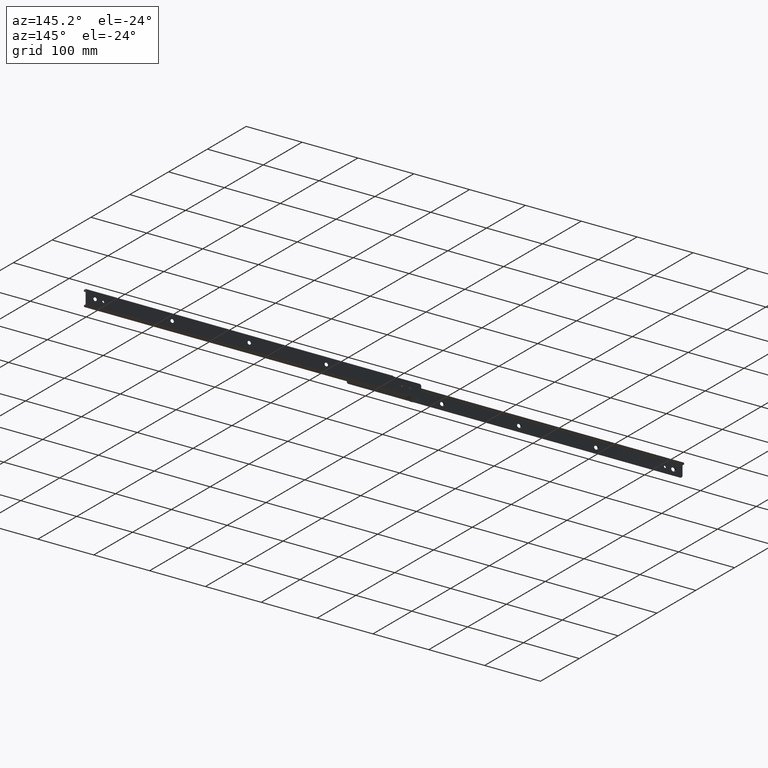
[diagram: clean part render]
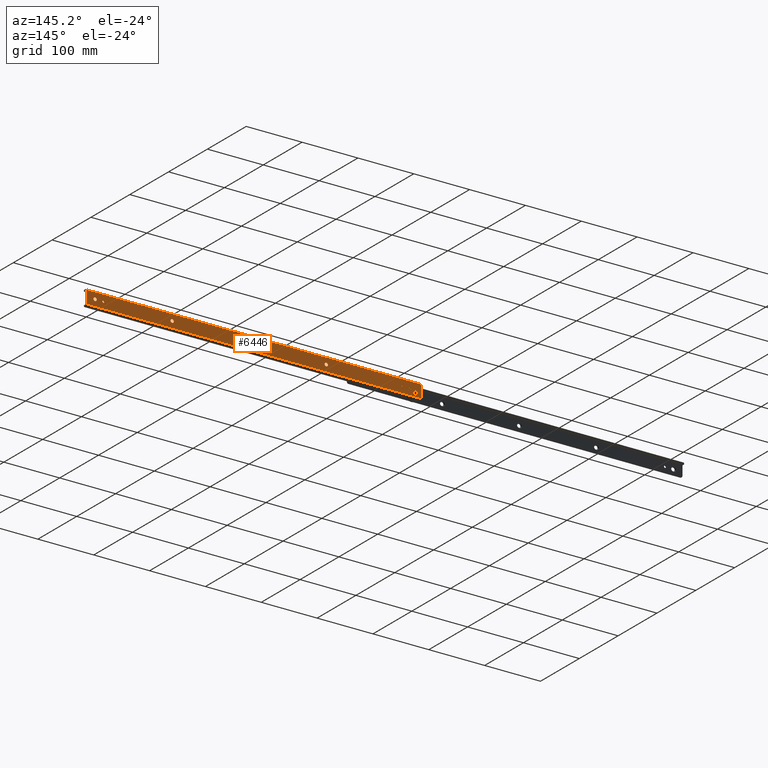
[diagram: same view with one face highlighted and labeled with its STEP entity id]
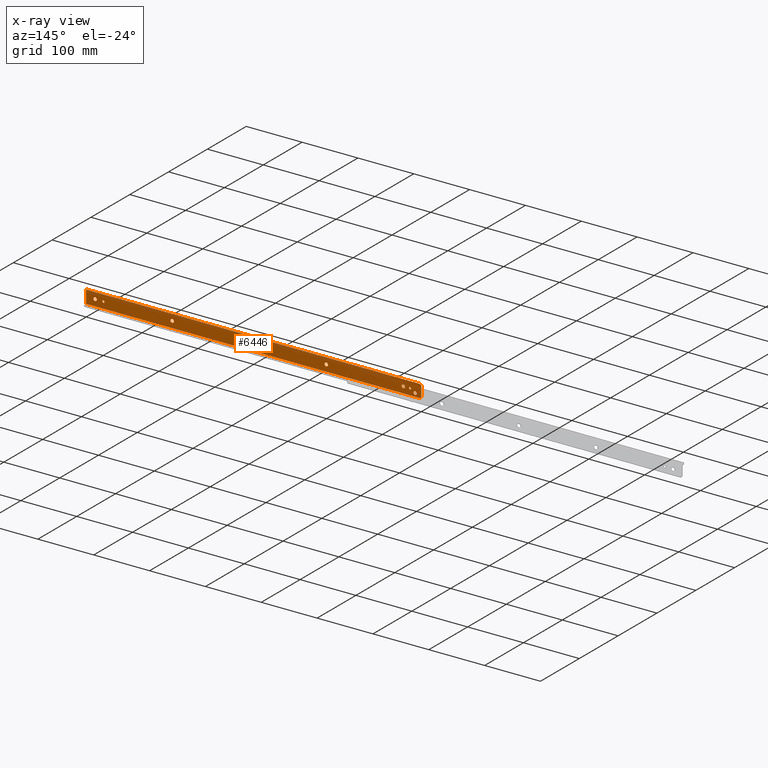
[diagram: x-ray of the same camera — body ghosted, the highlighted face saturated]
A machine part, auxiliary view. The second image highlights one B-rep face of the part: STEP entity #6446.
The next image is the same camera in x-ray: the body ghosted, the highlighted face saturated — about 0% of this face is hidden behind the body in this view.
In plain terms, the highlighted face is a freeform B-spline surface patch.
Its self-contained STEP definition (entity closure, byte-faithful):
#4171=CARTESIAN_POINT('',(29.023201358692852,-7.002160E-009,-7.472384053427721));
#4172=VERTEX_POINT('',#4171);
#4173=CARTESIAN_POINT('',(32.0,0.0,-10.099999999999801));
#4174=VERTEX_POINT('',#4173);
#4175=CARTESIAN_POINT('',(29.023201358692855,-7.002160E-009,-7.472384053427721));
#4176=CARTESIAN_POINT('',(29.351904282893070,0.0,-10.099999999999802));
#4177=CARTESIAN_POINT('',(32.0,0.0,-10.099999999999801));
#4185=(BOUNDED_CURVE()B_SPLINE_CURVE(2,(#4175,#4176,#4177),.UNSPECIFIED.,.F.,.U.)B_SPLINE_CURVE_WITH_KNOTS((3,3),(0.271473934237460,0.500000000000000),.UNSPECIFIED.)CURVE()GEOMETRIC_REPRESENTATION_ITEM()RATIONAL_B_SPLINE_CURVE((0.954005420053977,0.732265060064140,1.0))REPRESENTATION_ITEM(''));
#4186=EDGE_CURVE('',#4172,#4174,#4185,.T.);
#4227=CARTESIAN_POINT('',(34.999885772111092,-3.867206E-009,-7.073820367876783));
#4228=VERTEX_POINT('',#4227);
#4234=CARTESIAN_POINT('',(32.0,0.0,-10.099999999999801));
#4235=CARTESIAN_POINT('',(34.999999999999993,0.0,-10.099999999999801));
#4236=CARTESIAN_POINT('',(35.0,0.0,-7.099999999999799));
#4237=CARTESIAN_POINT('',(35.0,0.0,-7.086909921935767));
#4238=CARTESIAN_POINT('',(34.999885772111085,-3.867206E-009,-7.073820367876783));
#4246=(BOUNDED_CURVE()B_SPLINE_CURVE(2,(#4234,#4235,#4236,#4237,#4238),.UNSPECIFIED.,.F.,.U.)B_SPLINE_CURVE_WITH_KNOTS((3,2,3),(0.500000000000000,0.750000000000000,0.751539897341326),.UNSPECIFIED.)CURVE()GEOMETRIC_REPRESENTATION_ITEM()RATIONAL_B_SPLINE_CURVE((1.0,0.707106781186548,1.0,0.998195898044227,0.996414021142895))REPRESENTATION_ITEM(''));
#4247=EDGE_CURVE('',#4174,#4228,#4246,.T.);
#4274=CARTESIAN_POINT('',(32.0,0.0,-4.099999999999799));
#4275=VERTEX_POINT('',#4274);
#4276=CARTESIAN_POINT('',(32.0,0.0,-4.099999999999799));
#4277=CARTESIAN_POINT('',(29.0,0.0,-4.099999999999799));
#4278=CARTESIAN_POINT('',(29.0,0.0,-7.099999999999799));
#4279=CARTESIAN_POINT('',(29.0,0.0,-7.286914829626650));
#4280=CARTESIAN_POINT('',(29.023201358692855,-7.002160E-009,-7.472384053427721));
#4288=(BOUNDED_CURVE()B_SPLINE_CURVE(2,(#4276,#4277,#4278,#4279,#4280),.UNSPECIFIED.,.F.,.U.)B_SPLINE_CURVE_WITH_KNOTS((3,2,3),(0.0,0.250000000000000,0.271473934237460),.UNSPECIFIED.)CURVE()GEOMETRIC_REPRESENTATION_ITEM()RATIONAL_B_SPLINE_CURVE((1.0,0.707106781186548,1.0,0.974841721122408,0.954005420053977))REPRESENTATION_ITEM(''));
#4289=EDGE_CURVE('',#4275,#4172,#4288,.T.);
#4291=CARTESIAN_POINT('',(34.999885772111085,-3.867206E-009,-7.073820367876783));
#4292=CARTESIAN_POINT('',(34.973933581025001,0.0,-4.099999999999799));
#4293=CARTESIAN_POINT('',(32.0,0.0,-4.099999999999799));
#4301=(BOUNDED_CURVE()B_SPLINE_CURVE(2,(#4291,#4292,#4293),.UNSPECIFIED.,.F.,.U.)B_SPLINE_CURVE_WITH_KNOTS((3,3),(0.751539897341327,1.0),.UNSPECIFIED.)CURVE()GEOMETRIC_REPRESENTATION_ITEM()RATIONAL_B_SPLINE_CURVE((0.996414021142892,0.708910883142322,1.0))REPRESENTATION_ITEM(''));
#4302=EDGE_CURVE('',#4228,#4275,#4301,.T.);
#4357=CARTESIAN_POINT('',(167.023201358692890,-7.002153E-009,-7.472384053427918));
#4358=VERTEX_POINT('',#4357);
#4359=CARTESIAN_POINT('',(170.0,0.0,-10.100000000000000));
#4360=VERTEX_POINT('',#4359);
#4361=CARTESIAN_POINT('',(167.023201358692890,-7.002153E-009,-7.472384053427918));
#4362=CARTESIAN_POINT('',(167.351904282893090,0.0,-10.100000000000003));
#4363=CARTESIAN_POINT('',(170.0,0.0,-10.100000000000000));
#4371=(BOUNDED_CURVE()B_SPLINE_CURVE(2,(#4361,#4362,#4363),.UNSPECIFIED.,.F.,.U.)B_SPLINE_CURVE_WITH_KNOTS((3,3),(0.271473934237460,0.500000000000000),.UNSPECIFIED.)CURVE()GEOMETRIC_REPRESENTATION_ITEM()RATIONAL_B_SPLINE_CURVE((0.954005420053977,0.732265060064139,1.0))REPRESENTATION_ITEM(''));
#4372=EDGE_CURVE('',#4358,#4360,#4371,.T.);
#4413=CARTESIAN_POINT('',(172.999885772111100,-3.867216E-009,-7.073820367876986));
#4414=VERTEX_POINT('',#4413);
#4420=CARTESIAN_POINT('',(170.0,0.0,-10.100000000000000));
#4421=CARTESIAN_POINT('',(172.999999999999970,0.0,-10.100000000000001));
#4422=CARTESIAN_POINT('',(173.0,0.0,-7.100000000000001));
#4423=CARTESIAN_POINT('',(173.0,0.0,-7.086909921935968));
#4424=CARTESIAN_POINT('',(172.999885772111130,-3.867216E-009,-7.073820367876986));
#4432=(BOUNDED_CURVE()B_SPLINE_CURVE(2,(#4420,#4421,#4422,#4423,#4424),.UNSPECIFIED.,.F.,.U.)B_SPLINE_CURVE_WITH_KNOTS((3,2,3),(0.500000000000000,0.750000000000000,0.751539897341326),.UNSPECIFIED.)CURVE()GEOMETRIC_REPRESENTATION_ITEM()RATIONAL_B_SPLINE_CURVE((1.0,0.707106781186548,1.0,0.998195898044227,0.996414021142895))REPRESENTATION_ITEM(''));
#4433=EDGE_CURVE('',#4360,#4414,#4432,.T.);
#4460=CARTESIAN_POINT('',(170.0,0.0,-4.100000000000001));
#4461=VERTEX_POINT('',#4460);
#4462=CARTESIAN_POINT('',(170.0,0.0,-4.100000000000001));
#4463=CARTESIAN_POINT('',(166.999999999999940,0.0,-4.100000000000000));
#4464=CARTESIAN_POINT('',(167.0,0.0,-7.100000000000001));
#4465=CARTESIAN_POINT('',(167.000000000000030,0.0,-7.286914829626850));
#4466=CARTESIAN_POINT('',(167.023201358692890,-7.002153E-009,-7.472384053427918));
#4474=(BOUNDED_CURVE()B_SPLINE_CURVE(2,(#4462,#4463,#4464,#4465,#4466),.UNSPECIFIED.,.F.,.U.)B_SPLINE_CURVE_WITH_KNOTS((3,2,3),(0.0,0.250000000000000,0.271473934237460),.UNSPECIFIED.)CURVE()GEOMETRIC_REPRESENTATION_ITEM()RATIONAL_B_SPLINE_CURVE((1.0,0.707106781186548,1.0,0.974841721122408,0.954005420053977))REPRESENTATION_ITEM(''));
#4475=EDGE_CURVE('',#4461,#4358,#4474,.T.);
#4477=CARTESIAN_POINT('',(172.999885772111100,-3.867216E-009,-7.073820367876986));
#4478=CARTESIAN_POINT('',(172.973933581024990,0.0,-4.100000000000001));
#4479=CARTESIAN_POINT('',(170.0,0.0,-4.100000000000001));
#4487=(BOUNDED_CURVE()B_SPLINE_CURVE(2,(#4477,#4478,#4479),.UNSPECIFIED.,.F.,.U.)B_SPLINE_CURVE_WITH_KNOTS((3,3),(0.751539897341327,1.0),.UNSPECIFIED.)CURVE()GEOMETRIC_REPRESENTATION_ITEM()RATIONAL_B_SPLINE_CURVE((0.996414021142892,0.708910883142322,1.0))REPRESENTATION_ITEM(''));
#4488=EDGE_CURVE('',#4414,#4461,#4487,.T.);
#4543=CARTESIAN_POINT('',(305.023201358692920,-7.002161E-009,-7.472384053427922));
#4544=VERTEX_POINT('',#4543);
#4545=CARTESIAN_POINT('',(308.0,0.0,-10.100000000000000));
#4546=VERTEX_POINT('',#4545);
#4547=CARTESIAN_POINT('',(305.023201358692860,-7.002161E-009,-7.472384053427922));
#4548=CARTESIAN_POINT('',(305.351904282893030,0.0,-10.100000000000003));
#4549=CARTESIAN_POINT('',(308.0,0.0,-10.100000000000000));
#4557=(BOUNDED_CURVE()B_SPLINE_CURVE(2,(#4547,#4548,#4549),.UNSPECIFIED.,.F.,.U.)B_SPLINE_CURVE_WITH_KNOTS((3,3),(0.271473934237460,0.500000000000000),.UNSPECIFIED.)CURVE()GEOMETRIC_REPRESENTATION_ITEM()RATIONAL_B_SPLINE_CURVE((0.954005420053977,0.732265060064140,1.0))REPRESENTATION_ITEM(''));
#4558=EDGE_CURVE('',#4544,#4546,#4557,.T.);
#4599=CARTESIAN_POINT('',(310.999885772110990,-3.867212E-009,-7.073820367876987));
#4600=VERTEX_POINT('',#4599);
#4606=CARTESIAN_POINT('',(308.0,0.0,-10.100000000000000));
#4607=CARTESIAN_POINT('',(311.0,0.0,-10.100000000000001));
#4608=CARTESIAN_POINT('',(311.0,0.0,-7.100000000000001));
#4609=CARTESIAN_POINT('',(311.000000000000060,0.0,-7.086909921935968));
#4610=CARTESIAN_POINT('',(310.999885772111100,-3.867212E-009,-7.073820367876987));
#4618=(BOUNDED_CURVE()B_SPLINE_CURVE(2,(#4606,#4607,#4608,#4609,#4610),.UNSPECIFIED.,.F.,.U.)B_SPLINE_CURVE_WITH_KNOTS((3,2,3),(0.500000000000000,0.750000000000000,0.751539897341326),.UNSPECIFIED.)CURVE()GEOMETRIC_REPRESENTATION_ITEM()RATIONAL_B_SPLINE_CURVE((1.0,0.707106781186548,1.0,0.998195898044227,0.996414021142895))REPRESENTATION_ITEM(''));
#4619=EDGE_CURVE('',#4546,#4600,#4618,.T.);
#4646=CARTESIAN_POINT('',(308.0,0.0,-4.100000000000001));
#4647=VERTEX_POINT('',#4646);
#4648=CARTESIAN_POINT('',(308.0,0.0,-4.100000000000001));
#4649=CARTESIAN_POINT('',(305.0,0.0,-4.100000000000000));
#4650=CARTESIAN_POINT('',(305.0,0.0,-7.100000000000001));
#4651=CARTESIAN_POINT('',(305.0,0.0,-7.286914829626853));
#4652=CARTESIAN_POINT('',(305.023201358692860,-7.002161E-009,-7.472384053427922));
#4660=(BOUNDED_CURVE()B_SPLINE_CURVE(2,(#4648,#4649,#4650,#4651,#4652),.UNSPECIFIED.,.F.,.U.)B_SPLINE_CURVE_WITH_KNOTS((3,2,3),(0.0,0.250000000000000,0.271473934237460),.UNSPECIFIED.)CURVE()GEOMETRIC_REPRESENTATION_ITEM()RATIONAL_B_SPLINE_CURVE((1.0,0.707106781186548,1.0,0.974841721122408,0.954005420053977))REPRESENTATION_ITEM(''));
#4661=EDGE_CURVE('',#4647,#4544,#4660,.T.);
#4663=CARTESIAN_POINT('',(310.999885772110990,-3.867212E-009,-7.073820367876987));
#4664=CARTESIAN_POINT('',(310.973933581025160,0.0,-4.100000000000000));
#4665=CARTESIAN_POINT('',(308.0,0.0,-4.100000000000001));
#4673=(BOUNDED_CURVE()B_SPLINE_CURVE(2,(#4663,#4664,#4665),.UNSPECIFIED.,.F.,.U.)B_SPLINE_CURVE_WITH_KNOTS((3,3),(0.751539897341327,1.0),.UNSPECIFIED.)CURVE()GEOMETRIC_REPRESENTATION_ITEM()RATIONAL_B_SPLINE_CURVE((0.996414021142893,0.708910883142322,1.0))REPRESENTATION_ITEM(''));
#4674=EDGE_CURVE('',#4600,#4647,#4673,.T.);
#4729=CARTESIAN_POINT('',(443.023201358692920,-7.002160E-009,-7.472384053427922));
#4730=VERTEX_POINT('',#4729);
#4731=CARTESIAN_POINT('',(446.0,0.0,-10.100000000000000));
#4732=VERTEX_POINT('',#4731);
#4733=CARTESIAN_POINT('',(443.023201358692860,-7.002160E-009,-7.472384053427922));
#4734=CARTESIAN_POINT('',(443.351904282893140,0.0,-10.100000000000001));
#4735=CARTESIAN_POINT('',(446.0,0.0,-10.100000000000000));
#4743=(BOUNDED_CURVE()B_SPLINE_CURVE(2,(#4733,#4734,#4735),.UNSPECIFIED.,.F.,.U.)B_SPLINE_CURVE_WITH_KNOTS((3,3),(0.271473934237460,0.500000000000000),.UNSPECIFIED.)CURVE()GEOMETRIC_REPRESENTATION_ITEM()RATIONAL_B_SPLINE_CURVE((0.954005420053977,0.732265060064140,1.0))REPRESENTATION_ITEM(''));
#4744=EDGE_CURVE('',#4730,#4732,#4743,.T.);
#4785=CARTESIAN_POINT('',(448.999885772111100,-3.867203E-009,-7.073820367876987));
#4786=VERTEX_POINT('',#4785);
#4792=CARTESIAN_POINT('',(446.0,0.0,-10.100000000000000));
#4793=CARTESIAN_POINT('',(448.999999999999890,0.0,-10.100000000000001));
#4794=CARTESIAN_POINT('',(449.0,0.0,-7.100000000000001));
#4795=CARTESIAN_POINT('',(449.000000000000060,0.0,-7.086909921935968));
#4796=CARTESIAN_POINT('',(448.999885772111100,-3.867203E-009,-7.073820367876987));
#4804=(BOUNDED_CURVE()B_SPLINE_CURVE(2,(#4792,#4793,#4794,#4795,#4796),.UNSPECIFIED.,.F.,.U.)B_SPLINE_CURVE_WITH_KNOTS((3,2,3),(0.500000000000000,0.750000000000000,0.751539897341326),.UNSPECIFIED.)CURVE()GEOMETRIC_REPRESENTATION_ITEM()RATIONAL_B_SPLINE_CURVE((1.0,0.707106781186548,1.0,0.998195898044227,0.996414021142895))REPRESENTATION_ITEM(''));
#4805=EDGE_CURVE('',#4732,#4786,#4804,.T.);
#4832=CARTESIAN_POINT('',(446.0,0.0,-4.100000000000001));
#4833=VERTEX_POINT('',#4832);
#4834=CARTESIAN_POINT('',(446.0,0.0,-4.100000000000001));
#4835=CARTESIAN_POINT('',(443.0,0.0,-4.100000000000000));
#4836=CARTESIAN_POINT('',(443.0,0.0,-7.100000000000001));
#4837=CARTESIAN_POINT('',(443.0,0.0,-7.286914829626853));
#4838=CARTESIAN_POINT('',(443.023201358692800,-7.002160E-009,-7.472384053427922));
#4846=(BOUNDED_CURVE()B_SPLINE_CURVE(2,(#4834,#4835,#4836,#4837,#4838),.UNSPECIFIED.,.F.,.U.)B_SPLINE_CURVE_WITH_KNOTS((3,2,3),(0.0,0.250000000000000,0.271473934237460),.UNSPECIFIED.)CURVE()GEOMETRIC_REPRESENTATION_ITEM()RATIONAL_B_SPLINE_CURVE((1.0,0.707106781186548,1.0,0.974841721122408,0.954005420053977))REPRESENTATION_ITEM(''));
#4847=EDGE_CURVE('',#4833,#4730,#4846,.T.);
#4849=CARTESIAN_POINT('',(448.999885772111100,-3.867203E-009,-7.073820367876987));
#4850=CARTESIAN_POINT('',(448.973933581024880,0.0,-4.100000000000000));
#4851=CARTESIAN_POINT('',(446.0,0.0,-4.100000000000001));
#4859=(BOUNDED_CURVE()B_SPLINE_CURVE(2,(#4849,#4850,#4851),.UNSPECIFIED.,.F.,.U.)B_SPLINE_CURVE_WITH_KNOTS((3,3),(0.751539897341327,1.0),.UNSPECIFIED.)CURVE()GEOMETRIC_REPRESENTATION_ITEM()RATIONAL_B_SPLINE_CURVE((0.996414021142893,0.708910883142322,1.0))REPRESENTATION_ITEM(''));
#4860=EDGE_CURVE('',#4786,#4833,#4859,.T.);
#4915=CARTESIAN_POINT('',(581.023201358692860,-7.002179E-009,-7.472384053427927));
#4916=VERTEX_POINT('',#4915);
#4917=CARTESIAN_POINT('',(584.0,0.0,-10.100000000000000));
#4918=VERTEX_POINT('',#4917);
#4919=CARTESIAN_POINT('',(581.023201358692860,-7.002179E-009,-7.472384053427927));
#4920=CARTESIAN_POINT('',(581.351904282893090,0.0,-10.100000000000003));
#4921=CARTESIAN_POINT('',(584.0,0.0,-10.100000000000000));
#4929=(BOUNDED_CURVE()B_SPLINE_CURVE(2,(#4919,#4920,#4921),.UNSPECIFIED.,.F.,.U.)B_SPLINE_CURVE_WITH_KNOTS((3,3),(0.271473934237460,0.500000000000000),.UNSPECIFIED.)CURVE()GEOMETRIC_REPRESENTATION_ITEM()RATIONAL_B_SPLINE_CURVE((0.954005420053976,0.732265060064140,1.0))REPRESENTATION_ITEM(''));
#4930=EDGE_CURVE('',#4916,#4918,#4929,.T.);
#4971=CARTESIAN_POINT('',(586.999885772111040,-3.867226E-009,-7.073820367876985));
#4972=VERTEX_POINT('',#4971);
#4978=CARTESIAN_POINT('',(584.0,0.0,-10.100000000000000));
#4979=CARTESIAN_POINT('',(587.000000000000110,0.0,-10.100000000000001));
#4980=CARTESIAN_POINT('',(587.0,0.0,-7.100000000000001));
#4981=CARTESIAN_POINT('',(587.0,0.0,-7.086909921935968));
#4982=CARTESIAN_POINT('',(586.999885772111040,-3.867226E-009,-7.073820367876986));
#4990=(BOUNDED_CURVE()B_SPLINE_CURVE(2,(#4978,#4979,#4980,#4981,#4982),.UNSPECIFIED.,.F.,.U.)B_SPLINE_CURVE_WITH_KNOTS((3,2,3),(0.500000000000000,0.750000000000000,0.751539897341326),.UNSPECIFIED.)CURVE()GEOMETRIC_REPRESENTATION_ITEM()RATIONAL_B_SPLINE_CURVE((1.0,0.707106781186548,1.0,0.998195898044227,0.996414021142895))REPRESENTATION_ITEM(''));
#4991=EDGE_CURVE('',#4918,#4972,#4990,.T.);
#5018=CARTESIAN_POINT('',(584.0,0.0,-4.100000000000001));
#5019=VERTEX_POINT('',#5018);
#5020=CARTESIAN_POINT('',(584.0,0.0,-4.100000000000001));
#5021=CARTESIAN_POINT('',(580.999999999999890,0.0,-4.100000000000000));
#5022=CARTESIAN_POINT('',(581.0,0.0,-7.100000000000001));
#5023=CARTESIAN_POINT('',(580.999999999999890,0.0,-7.286914829626856));
#5024=CARTESIAN_POINT('',(581.023201358692860,-7.002179E-009,-7.472384053427927));
#5032=(BOUNDED_CURVE()B_SPLINE_CURVE(2,(#5020,#5021,#5022,#5023,#5024),.UNSPECIFIED.,.F.,.U.)B_SPLINE_CURVE_WITH_KNOTS((3,2,3),(0.0,0.250000000000000,0.271473934237460),.UNSPECIFIED.)CURVE()GEOMETRIC_REPRESENTATION_ITEM()RATIONAL_B_SPLINE_CURVE((1.0,0.707106781186548,1.0,0.974841721122408,0.954005420053976))REPRESENTATION_ITEM(''));
#5033=EDGE_CURVE('',#5019,#4916,#5032,.T.);
#5035=CARTESIAN_POINT('',(586.999885772111040,-3.867226E-009,-7.073820367876986));
#5036=CARTESIAN_POINT('',(586.973933581024990,0.0,-4.100000000000001));
#5037=CARTESIAN_POINT('',(584.0,0.0,-4.100000000000001));
#5045=(BOUNDED_CURVE()B_SPLINE_CURVE(2,(#5035,#5036,#5037),.UNSPECIFIED.,.F.,.U.)B_SPLINE_CURVE_WITH_KNOTS((3,3),(0.751539897341327,1.0),.UNSPECIFIED.)CURVE()GEOMETRIC_REPRESENTATION_ITEM()RATIONAL_B_SPLINE_CURVE((0.996414021142892,0.708910883142322,1.0))REPRESENTATION_ITEM(''));
#5046=EDGE_CURVE('',#4972,#5019,#5045,.T.);
#5101=CARTESIAN_POINT('',(10.999999999999760,0.0,-9.649999999999800));
#5102=VERTEX_POINT('',#5101);
#5103=CARTESIAN_POINT('',(8.059093866000250,-9.714451E-017,-12.368545661081640));
#5104=VERTEX_POINT('',#5103);
#5105=CARTESIAN_POINT('',(10.999999999999760,0.0,-9.649999999999800));
#5106=CARTESIAN_POINT('',(8.273048061738662,0.0,-9.649999999999798));
#5107=CARTESIAN_POINT('',(8.059093866000250,-9.714451E-017,-12.368545661081635));
#5115=(BOUNDED_CURVE()B_SPLINE_CURVE(2,(#5105,#5106,#5107),.UNSPECIFIED.,.F.,.U.)B_SPLINE_CURVE_WITH_KNOTS((3,3),(0.0,0.236331299872550),.UNSPECIFIED.)CURVE()GEOMETRIC_REPRESENTATION_ITEM()RATIONAL_B_SPLINE_CURVE((1.0,0.723120659495846,0.969723354585302))REPRESENTATION_ITEM(''));
#5116=EDGE_CURVE('',#5102,#5104,#5115,.T.);
#5118=CARTESIAN_POINT('',(13.940906133999270,-9.714451E-017,-12.831454338917959));
#5119=VERTEX_POINT('',#5118);
#5120=CARTESIAN_POINT('',(13.940906133999272,-9.714451E-017,-12.831454338917965));
#5121=CARTESIAN_POINT('',(13.949999999999758,0.0,-12.715905822223709));
#5122=CARTESIAN_POINT('',(13.949999999999759,0.0,-12.599999999999801));
#5123=CARTESIAN_POINT('',(13.949999999999761,0.0,-9.649999999999800));
#5124=CARTESIAN_POINT('',(10.999999999999760,0.0,-9.649999999999800));
#5132=(BOUNDED_CURVE()B_SPLINE_CURVE(2,(#5120,#5121,#5122,#5123,#5124),.UNSPECIFIED.,.F.,.U.)B_SPLINE_CURVE_WITH_KNOTS((3,2,3),(0.736331299872550,0.750000000000000,1.0),.UNSPECIFIED.)CURVE()GEOMETRIC_REPRESENTATION_ITEM()RATIONAL_B_SPLINE_CURVE((0.969723354585301,0.983986121690702,1.0,0.707106781186548,1.0))REPRESENTATION_ITEM(''));
#5133=EDGE_CURVE('',#5119,#5102,#5132,.T.);
#5200=CARTESIAN_POINT('',(10.999999999999760,0.0,-15.549999999999800));
#5201=VERTEX_POINT('',#5200);
#5202=CARTESIAN_POINT('',(8.059093866000250,-9.714451E-017,-12.368545661081631));
#5203=CARTESIAN_POINT('',(8.049999999999761,0.0,-12.484094177775891));
#5204=CARTESIAN_POINT('',(8.049999999999761,0.0,-12.599999999999801));
#5205=CARTESIAN_POINT('',(8.049999999999761,0.0,-15.549999999999795));
#5206=CARTESIAN_POINT('',(10.999999999999760,0.0,-15.549999999999800));
#5214=(BOUNDED_CURVE()B_SPLINE_CURVE(2,(#5202,#5203,#5204,#5205,#5206),.UNSPECIFIED.,.F.,.U.)B_SPLINE_CURVE_WITH_KNOTS((3,2,3),(0.236331299872551,0.250000000000000,0.500000000000000),.UNSPECIFIED.)CURVE()GEOMETRIC_REPRESENTATION_ITEM()RATIONAL_B_SPLINE_CURVE((0.969723354585302,0.983986121690702,1.0,0.707106781186548,1.0))REPRESENTATION_ITEM(''));
#5215=EDGE_CURVE('',#5104,#5201,#5214,.T.);
#5249=CARTESIAN_POINT('',(10.999999999999760,0.0,-15.549999999999800));
#5250=CARTESIAN_POINT('',(13.726951938260848,0.0,-15.549999999999800));
#5251=CARTESIAN_POINT('',(13.940906133999267,-9.714451E-017,-12.831454338917959));
#5259=(BOUNDED_CURVE()B_SPLINE_CURVE(2,(#5249,#5250,#5251),.UNSPECIFIED.,.F.,.U.)B_SPLINE_CURVE_WITH_KNOTS((3,3),(0.500000000000000,0.736331299872550),.UNSPECIFIED.)CURVE()GEOMETRIC_REPRESENTATION_ITEM()RATIONAL_B_SPLINE_CURVE((1.0,0.723120659495847,0.969723354585300))REPRESENTATION_ITEM(''));
#5260=EDGE_CURVE('',#5201,#5119,#5259,.T.);
#5283=CARTESIAN_POINT('',(20.0,0.0,-5.099999999999799));
#5284=VERTEX_POINT('',#5283);
#5285=CARTESIAN_POINT('',(18.006165403967181,-9.714451E-017,-6.943080900901508));
#5286=VERTEX_POINT('',#5285);
#5287=CARTESIAN_POINT('',(20.0,0.0,-5.099999999999799));
#5288=CARTESIAN_POINT('',(18.151220705108980,0.0,-5.099999999999798));
#5289=CARTESIAN_POINT('',(18.006165403967184,-9.714451E-017,-6.943080900901508));
#5297=(BOUNDED_CURVE()B_SPLINE_CURVE(2,(#5287,#5288,#5289),.UNSPECIFIED.,.F.,.U.)B_SPLINE_CURVE_WITH_KNOTS((3,3),(0.0,0.236331144559496),.UNSPECIFIED.)CURVE()GEOMETRIC_REPRESENTATION_ITEM()RATIONAL_B_SPLINE_CURVE((1.0,0.723120841456408,0.969723030459033))REPRESENTATION_ITEM(''));
#5298=EDGE_CURVE('',#5284,#5286,#5297,.T.);
#5300=CARTESIAN_POINT('',(21.993834596032819,-9.714451E-017,-7.256919099098090));
#5301=VERTEX_POINT('',#5300);
#5302=CARTESIAN_POINT('',(21.993834596032812,-9.714451E-017,-7.256919099098090));
#5303=CARTESIAN_POINT('',(22.000000000000004,0.0,-7.178581125869870));
#5304=CARTESIAN_POINT('',(22.0,0.0,-7.099999999999799));
#5305=CARTESIAN_POINT('',(22.000000000000007,0.0,-5.099999999999798));
#5306=CARTESIAN_POINT('',(20.0,0.0,-5.099999999999799));
#5314=(BOUNDED_CURVE()B_SPLINE_CURVE(2,(#5302,#5303,#5304,#5305,#5306),.UNSPECIFIED.,.F.,.U.)B_SPLINE_CURVE_WITH_KNOTS((3,2,3),(0.736331144559496,0.750000000000000,1.0),.UNSPECIFIED.)CURVE()GEOMETRIC_REPRESENTATION_ITEM()RATIONAL_B_SPLINE_CURVE((0.969723030459033,0.983985939730139,1.0,0.707106781186548,1.0))REPRESENTATION_ITEM(''));
#5315=EDGE_CURVE('',#5301,#5284,#5314,.T.);
#5382=CARTESIAN_POINT('',(20.0,0.0,-9.099999999999799));
#5383=VERTEX_POINT('',#5382);
#5384=CARTESIAN_POINT('',(18.006165403967184,-9.714451E-017,-6.943080900901508));
#5385=CARTESIAN_POINT('',(18.000000000000007,0.0,-7.021418874129727));
#5386=CARTESIAN_POINT('',(18.0,0.0,-7.099999999999799));
#5387=CARTESIAN_POINT('',(18.000000000000007,0.0,-9.099999999999799));
#5388=CARTESIAN_POINT('',(20.0,0.0,-9.099999999999799));
#5396=(BOUNDED_CURVE()B_SPLINE_CURVE(2,(#5384,#5385,#5386,#5387,#5388),.UNSPECIFIED.,.F.,.U.)B_SPLINE_CURVE_WITH_KNOTS((3,2,3),(0.236331144559496,0.250000000000000,0.500000000000000),.UNSPECIFIED.)CURVE()GEOMETRIC_REPRESENTATION_ITEM()RATIONAL_B_SPLINE_CURVE((0.969723030459033,0.983985939730140,1.0,0.707106781186548,1.0))REPRESENTATION_ITEM(''));
#5397=EDGE_CURVE('',#5286,#5383,#5396,.T.);
#5431=CARTESIAN_POINT('',(20.0,0.0,-9.099999999999799));
#5432=CARTESIAN_POINT('',(21.848779294891028,0.0,-9.099999999999799));
#5433=CARTESIAN_POINT('',(21.993834596032819,-9.714451E-017,-7.256919099098090));
#5441=(BOUNDED_CURVE()B_SPLINE_CURVE(2,(#5431,#5432,#5433),.UNSPECIFIED.,.F.,.U.)B_SPLINE_CURVE_WITH_KNOTS((3,3),(0.500000000000000,0.736331144559496),.UNSPECIFIED.)CURVE()GEOMETRIC_REPRESENTATION_ITEM()RATIONAL_B_SPLINE_CURVE((1.0,0.723120841456407,0.969723030459034))REPRESENTATION_ITEM(''));
#5442=EDGE_CURVE('',#5383,#5301,#5441,.T.);
#5465=CARTESIAN_POINT('',(569.0,0.0,-5.100000000000001));
#5466=VERTEX_POINT('',#5465);
#5467=CARTESIAN_POINT('',(567.006165403967200,-9.714451E-017,-6.943080900901707));
#5468=VERTEX_POINT('',#5467);
#5469=CARTESIAN_POINT('',(569.0,0.0,-5.100000000000001));
#5470=CARTESIAN_POINT('',(567.151220705109040,0.0,-5.100000000000000));
#5471=CARTESIAN_POINT('',(567.006165403967200,-9.714451E-017,-6.943080900901707));
#5479=(BOUNDED_CURVE()B_SPLINE_CURVE(2,(#5469,#5470,#5471),.UNSPECIFIED.,.F.,.U.)B_SPLINE_CURVE_WITH_KNOTS((3,3),(0.0,0.236331144559495),.UNSPECIFIED.)CURVE()GEOMETRIC_REPRESENTATION_ITEM()RATIONAL_B_SPLINE_CURVE((1.0,0.723120841456408,0.969723030459032))REPRESENTATION_ITEM(''));
#5480=EDGE_CURVE('',#5466,#5468,#5479,.T.);
#5482=CARTESIAN_POINT('',(570.993834596032800,-9.714451E-017,-7.256919099098292));
#5483=VERTEX_POINT('',#5482);
#5484=CARTESIAN_POINT('',(570.993834596032800,-9.714451E-017,-7.256919099098292));
#5485=CARTESIAN_POINT('',(571.0,0.0,-7.178581125870073));
#5486=CARTESIAN_POINT('',(571.0,0.0,-7.100000000000001));
#5487=CARTESIAN_POINT('',(571.000000000000110,0.0,-5.100000000000001));
#5488=CARTESIAN_POINT('',(569.0,0.0,-5.100000000000001));
#5496=(BOUNDED_CURVE()B_SPLINE_CURVE(2,(#5484,#5485,#5486,#5487,#5488),.UNSPECIFIED.,.F.,.U.)B_SPLINE_CURVE_WITH_KNOTS((3,2,3),(0.736331144559495,0.750000000000000,1.0),.UNSPECIFIED.)CURVE()GEOMETRIC_REPRESENTATION_ITEM()RATIONAL_B_SPLINE_CURVE((0.969723030459033,0.983985939730139,1.0,0.707106781186548,1.0))REPRESENTATION_ITEM(''));
#5497=EDGE_CURVE('',#5483,#5466,#5496,.T.);
#5564=CARTESIAN_POINT('',(569.0,0.0,-9.100000000000000));
#5565=VERTEX_POINT('',#5564);
#5566=CARTESIAN_POINT('',(567.006165403967200,-9.714451E-017,-6.943080900901707));
#5567=CARTESIAN_POINT('',(567.000000000000110,0.0,-7.021418874129927));
#5568=CARTESIAN_POINT('',(567.0,0.0,-7.100000000000001));
#5569=CARTESIAN_POINT('',(567.0,0.0,-9.100000000000000));
#5570=CARTESIAN_POINT('',(569.0,0.0,-9.100000000000000));
#5578=(BOUNDED_CURVE()B_SPLINE_CURVE(2,(#5566,#5567,#5568,#5569,#5570),.UNSPECIFIED.,.F.,.U.)B_SPLINE_CURVE_WITH_KNOTS((3,2,3),(0.236331144559495,0.250000000000000,0.500000000000000),.UNSPECIFIED.)CURVE()GEOMETRIC_REPRESENTATION_ITEM()RATIONAL_B_SPLINE_CURVE((0.969723030459033,0.983985939730139,1.0,0.707106781186548,1.0))REPRESENTATION_ITEM(''));
#5579=EDGE_CURVE('',#5468,#5565,#5578,.T.);
#5613=CARTESIAN_POINT('',(569.0,0.0,-9.100000000000000));
#5614=CARTESIAN_POINT('',(570.848779294890960,0.0,-9.100000000000000));
#5615=CARTESIAN_POINT('',(570.993834596032800,-9.714451E-017,-7.256919099098292));
#5623=(BOUNDED_CURVE()B_SPLINE_CURVE(2,(#5613,#5614,#5615),.UNSPECIFIED.,.F.,.U.)B_SPLINE_CURVE_WITH_KNOTS((3,3),(0.500000000000000,0.736331144559496),.UNSPECIFIED.)CURVE()GEOMETRIC_REPRESENTATION_ITEM()RATIONAL_B_SPLINE_CURVE((1.0,0.723120841456407,0.969723030459034))REPRESENTATION_ITEM(''));
#5624=EDGE_CURVE('',#5565,#5483,#5623,.T.);
#5904=CARTESIAN_POINT('',(3.0,0.0,4.400000000000205));
#5905=VERTEX_POINT('',#5904);
#5911=CARTESIAN_POINT('',(0.0,0.0,1.400000000000202));
#5912=VERTEX_POINT('',#5911);
#5913=CARTESIAN_POINT('',(0.0,0.0,1.400000000000204));
#5914=CARTESIAN_POINT('',(-4.336809E-016,0.0,2.642640687119489));
#5915=CARTESIAN_POINT('',(0.878679656440356,0.0,3.521320343559846));
#5916=CARTESIAN_POINT('',(1.757359312880714,0.0,4.400000000000204));
#5917=CARTESIAN_POINT('',(3.0,0.0,4.400000000000204));
#5925=(BOUNDED_CURVE()B_SPLINE_CURVE(2,(#5913,#5914,#5915,#5916,#5917),.UNSPECIFIED.,.F.,.U.)B_SPLINE_CURVE_WITH_KNOTS((3,2,3),(0.0,0.500000000000000,1.0),.UNSPECIFIED.)CURVE()GEOMETRIC_REPRESENTATION_ITEM()RATIONAL_B_SPLINE_CURVE((1.0,0.923879532511287,1.0,0.923879532511287,1.0))REPRESENTATION_ITEM(''));
#5926=EDGE_CURVE('',#5912,#5905,#5925,.T.);
#5950=CARTESIAN_POINT('',(3.0,0.0,-18.600000000000001));
#5951=VERTEX_POINT('',#5950);
#5952=CARTESIAN_POINT('',(0.0,0.0,-15.600000000000000));
#5953=VERTEX_POINT('',#5952);
#5954=CARTESIAN_POINT('',(3.0,0.0,-18.600000000000001));
#5955=CARTESIAN_POINT('',(0.0,0.0,-18.599999999999991));
#5956=CARTESIAN_POINT('',(0.0,0.0,-15.600000000000000));
#5964=(BOUNDED_CURVE()B_SPLINE_CURVE(2,(#5954,#5955,#5956),.UNSPECIFIED.,.F.,.U.)CURVE()GEOMETRIC_REPRESENTATION_ITEM()QUASI_UNIFORM_CURVE()RATIONAL_B_SPLINE_CURVE((1.0,0.707106781186548,1.0))REPRESENTATION_ITEM(''));
#5965=EDGE_CURVE('',#5951,#5953,#5964,.T.);
#6002=CARTESIAN_POINT('',(50.0,0.0,4.400000000000205));
#6003=VERTEX_POINT('',#6002);
#6004=CARTESIAN_POINT('',(3.0,0.0,4.400000000000205));
#6005=CARTESIAN_POINT('',(50.0,0.0,4.400000000000205));
#6006=QUASI_UNIFORM_CURVE('',1,(#6004,#6005),.UNSPECIFIED.,.F.,.U.);
#6007=EDGE_CURVE('',#5905,#6003,#6006,.T.);
#6073=CARTESIAN_POINT('',(22.0,0.0,-18.600000000000001));
#6074=VERTEX_POINT('',#6073);
#6075=CARTESIAN_POINT('',(22.0,0.0,-18.600000000000001));
#6076=CARTESIAN_POINT('',(3.0,0.0,-18.600000000000001));
#6077=QUASI_UNIFORM_CURVE('',1,(#6075,#6076),.UNSPECIFIED.,.F.,.U.);
#6078=EDGE_CURVE('',#6074,#5951,#6077,.T.);
#6128=CARTESIAN_POINT('',(0.0,0.0,-15.600000000000000));
#6129=CARTESIAN_POINT('',(0.0,0.0,1.400000000000202));
#6130=QUASI_UNIFORM_CURVE('',1,(#6128,#6129),.UNSPECIFIED.,.F.,.U.);
#6131=EDGE_CURVE('',#5953,#5912,#6130,.T.);
#6183=CARTESIAN_POINT('',(600.0,9.237056E-014,-18.600000000000001));
#6184=VERTEX_POINT('',#6183);
#6198=CARTESIAN_POINT('',(600.0,0.0,4.400000000000205));
#6199=VERTEX_POINT('',#6198);
#6200=CARTESIAN_POINT('',(600.0,9.237056E-014,-18.600000000000001));
#6201=CARTESIAN_POINT('',(600.0,0.0,4.400000000000205));
#6202=QUASI_UNIFORM_CURVE('',1,(#6200,#6201),.UNSPECIFIED.,.F.,.U.);
#6203=EDGE_CURVE('',#6184,#6199,#6202,.T.);
#6235=CARTESIAN_POINT('',(600.0,0.0,4.400000000000205));
#6236=CARTESIAN_POINT('',(50.0,0.0,4.400000000000205));
#6237=QUASI_UNIFORM_CURVE('',1,(#6235,#6236),.UNSPECIFIED.,.F.,.U.);
#6238=EDGE_CURVE('',#6199,#6003,#6237,.T.);
#6270=CARTESIAN_POINT('',(600.0,9.237056E-014,-18.600000000000001));
#6271=CARTESIAN_POINT('',(22.0,0.0,-18.600000000000001));
#6272=QUASI_UNIFORM_CURVE('',1,(#6270,#6271),.UNSPECIFIED.,.F.,.U.);
#6273=EDGE_CURVE('',#6184,#6074,#6272,.T.);
#6383=CARTESIAN_POINT('',(-29.969998837083590,0.0,5.548850171329296));
#6384=CARTESIAN_POINT('',(-29.969998837083590,0.0,-19.748850582601140));
#6385=CARTESIAN_POINT('',(629.970014930337700,0.0,5.548850171329296));
#6386=CARTESIAN_POINT('',(629.970014930337700,0.0,-19.748850582601140));
#6387=B_SPLINE_SURFACE_WITH_KNOTS('',1,1,((#6383,#6385),(#6384,#6386)),.UNSPECIFIED.,.F.,.F.,.U.,(2,2),(2,2),(0.0,25.297700753930439),(0.0,659.940013767421310),.UNSPECIFIED.);
#6388=ORIENTED_EDGE('',*,*,#6078,.T.);
#6389=ORIENTED_EDGE('',*,*,#5965,.T.);
#6390=ORIENTED_EDGE('',*,*,#6131,.T.);
#6391=ORIENTED_EDGE('',*,*,#5926,.T.);
#6392=ORIENTED_EDGE('',*,*,#6007,.T.);
#6393=ORIENTED_EDGE('',*,*,#6238,.F.);
#6394=ORIENTED_EDGE('',*,*,#6203,.F.);
#6395=ORIENTED_EDGE('',*,*,#6273,.T.);
#6396=EDGE_LOOP('',(#6388,#6389,#6390,#6391,#6392,#6393,#6394,#6395));
#6397=FACE_OUTER_BOUND('',#6396,.T.);
#6398=ORIENTED_EDGE('',*,*,#5624,.T.);
#6399=ORIENTED_EDGE('',*,*,#5497,.T.);
#6400=ORIENTED_EDGE('',*,*,#5480,.T.);
#6401=ORIENTED_EDGE('',*,*,#5579,.T.);
#6402=EDGE_LOOP('',(#6398,#6399,#6400,#6401));
#6403=FACE_BOUND('',#6402,.T.);
#6404=ORIENTED_EDGE('',*,*,#5442,.T.);
#6405=ORIENTED_EDGE('',*,*,#5315,.T.);
#6406=ORIENTED_EDGE('',*,*,#5298,.T.);
#6407=ORIENTED_EDGE('',*,*,#5397,.T.);
#6408=EDGE_LOOP('',(#6404,#6405,#6406,#6407));
#6409=FACE_BOUND('',#6408,.T.);
#6410=ORIENTED_EDGE('',*,*,#5260,.T.);
#6411=ORIENTED_EDGE('',*,*,#5133,.T.);
#6412=ORIENTED_EDGE('',*,*,#5116,.T.);
#6413=ORIENTED_EDGE('',*,*,#5215,.T.);
#6414=EDGE_LOOP('',(#6410,#6411,#6412,#6413));
#6415=FACE_BOUND('',#6414,.T.);
#6416=ORIENTED_EDGE('',*,*,#4991,.T.);
#6417=ORIENTED_EDGE('',*,*,#5046,.T.);
#6418=ORIENTED_EDGE('',*,*,#5033,.T.);
#6419=ORIENTED_EDGE('',*,*,#4930,.T.);
#6420=EDGE_LOOP('',(#6416,#6417,#6418,#6419));
#6421=FACE_BOUND('',#6420,.T.);
#6422=ORIENTED_EDGE('',*,*,#4805,.T.);
#6423=ORIENTED_EDGE('',*,*,#4860,.T.);
#6424=ORIENTED_EDGE('',*,*,#4847,.T.);
#6425=ORIENTED_EDGE('',*,*,#4744,.T.);
#6426=EDGE_LOOP('',(#6422,#6423,#6424,#6425));
#6427=FACE_BOUND('',#6426,.T.);
#6428=ORIENTED_EDGE('',*,*,#4619,.T.);
#6429=ORIENTED_EDGE('',*,*,#4674,.T.);
#6430=ORIENTED_EDGE('',*,*,#4661,.T.);
#6431=ORIENTED_EDGE('',*,*,#4558,.T.);
#6432=EDGE_LOOP('',(#6428,#6429,#6430,#6431));
#6433=FACE_BOUND('',#6432,.T.);
#6434=ORIENTED_EDGE('',*,*,#4433,.T.);
#6435=ORIENTED_EDGE('',*,*,#4488,.T.);
#6436=ORIENTED_EDGE('',*,*,#4475,.T.);
#6437=ORIENTED_EDGE('',*,*,#4372,.T.);
#6438=EDGE_LOOP('',(#6434,#6435,#6436,#6437));
#6439=FACE_BOUND('',#6438,.T.);
#6440=ORIENTED_EDGE('',*,*,#4247,.T.);
#6441=ORIENTED_EDGE('',*,*,#4302,.T.);
#6442=ORIENTED_EDGE('',*,*,#4289,.T.);
#6443=ORIENTED_EDGE('',*,*,#4186,.T.);
#6444=EDGE_LOOP('',(#6440,#6441,#6442,#6443));
#6445=FACE_BOUND('',#6444,.T.);
#6446=ADVANCED_FACE('',(#6397,#6403,#6409,#6415,#6421,#6427,#6433,#6439,#6445),#6387,.F.);